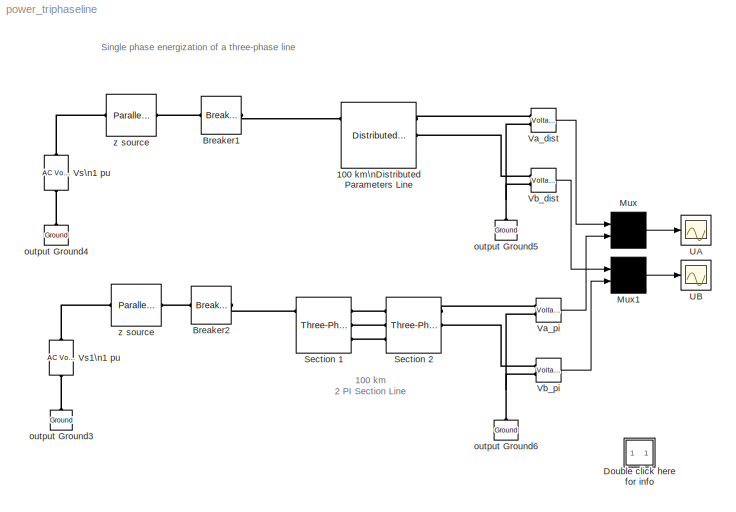
MODEL power_triphaseline
KIND model
BLOCK [Reference] 100 km\nDistributed Parameters Line  REF=powerlib/Elements/Distributed Parameters Line
  AttributesFormatString = \\n
  Capacitance = [12.74e-9 7.751e-9]
  Frequency = 60
  Inductance = [0.9337e-3  4.1264e-3]
  Length = 100
  Measurements = None
  Phases = 3
  Ports = [0, 0, 0, 0, 0, 3, 3]
  Resistance = [0.01273 0.3864]
  ShowPortLabels = on
  SourceBlock = powerlib/Elements/Distributed Parameters Line
  SourceType = Distributed Parameters Line
  x1 = [0 0 0 0; 0.0001244 0 0 0; 0.0002488 0 0 0; 0.0003733 0 0 0; 0.0004977 0 0 0; 0.0006221 0 0 0]
  x2 = [0 0 0 0; 0.0001244 0 0 0; 0.0002488 0 0 0; 0.0003733 0 0 0; 0.0004977 0 0 0; 0.0006221 0 0 0]
  x3 = [0 0 0 0; 0.0001244 0 0 0; 0.0002488 0 0 0; 0.0003733 0 0 0; 0.0004977 0 0 0; 0.0006221 0 0 0]
  x4 = [0 0 0 0; 0.0001244 0 0 0; 0.0002488 0 0 0; 0.0003733 0 0 0; 0.0004977 0 0 0; 0.0006221 0 0 0]
  x5 = 0
BLOCK [Reference] Breaker1  REF=powerlib/Elements/Breaker
  AttributesFormatString = \\n
  BreakerResistance = 0.01
  External = off
  InitialState = 0
  Measurements = None
  Ports = [0, 0, 0, 0, 0, 1, 1]
  ShowPortLabels = on
  SnubberCapacitance = 0
  SnubberResistance = inf
  SourceBlock = powerlib/Elements/Breaker
  SourceType = Breaker
  SwitchingTimes = [ 0.25/60  4/60 ]
BLOCK [Reference] Breaker2  REF=powerlib/Elements/Breaker
  AttributesFormatString = \\n
  BreakerResistance = 0.01
  External = off
  InitialState = 0
  Measurements = None
  Ports = [0, 0, 0, 0, 0, 1, 1]
  ShowPortLabels = on
  SnubberCapacitance = 0
  SnubberResistance = inf
  SourceBlock = powerlib/Elements/Breaker
  SourceType = Breaker
  SwitchingTimes = [ .25/60  4/60 ]
BLOCK [SubSystem] Double click here for info
  MaskDisplay = disp('?')
  MaskIconFrame = on
  MaskIconOpaque = on
  MaskIconRotate = none
  MaskIconUnits = autoscale
  MinAlgLoopOccurrences = off
  Ports = []
  RTWSystemCode = Auto
  TreatAsAtomicUnit = off
BLOCK [Mux] Mux
  Inputs = 2
  Ports = [2, 1]
BLOCK [Mux] Mux1
  Inputs = 2
  Ports = [2, 1]
BLOCK [Reference] Section 1  REF=powerlib/Elements/Three-Phase\nPI Section Line
  AttributesFormatString = \\n
  Capacitances = [12.74e-9 7.751e-9]
  Frequency = 60
  Inductances = [ 0.9337e-3  4.1264e-3]
  LConnTagsString = a|b|c
  LeftPortType = p1
  Length = 50
  PhysicalDomain = powersysdomain
  Ports = [0, 0, 0, 0, 0, 3, 3]
  RConnTagsString = A|B|C
  Resistances = [ 0.01273 0.3864]
  RightPortType = p1
  SourceBlock = powerlib/Elements/Three-Phase\nPI Section Line
  SourceType = Three-Phase PI Section Line
  SubClassName = unknown
BLOCK [Reference] Section 2  REF=powerlib/Elements/Three-Phase\nPI Section Line
  AttributesFormatString = \\n
  Capacitances = [12.74e-9 7.751e-9]
  Frequency = 60
  Inductances = [ 0.9337e-3  4.1264e-3]
  LConnTagsString = a|b|c
  LeftPortType = p1
  Length = 50
  PhysicalDomain = powersysdomain
  Ports = [0, 0, 0, 0, 0, 3, 3]
  RConnTagsString = A|B|C
  Resistances = [ 0.01273 0.3864]
  RightPortType = p1
  SourceBlock = powerlib/Elements/Three-Phase\nPI Section Line
  SourceType = Three-Phase PI Section Line
  SubClassName = unknown
BLOCK [Scope] UA
  DataFormat = Array
  LimitDataPoints = off
  NumInputPorts = 1
  Ports = [1]
  TickLabels = on
  TimeRange = 0.1
  YMax = 4
  YMin = -4
BLOCK [Scope] UB
  DataFormat = Array
  MaxDataPoints = 500000
  NumInputPorts = 1
  Ports = [1]
  TickLabels = on
  TimeRange = 0.1
  YMax = 1
  YMin = -1
BLOCK [Reference] Va_dist  REF=powerlib/Measurements/Voltage Measurement
  AttributesFormatString = \\n
  OutputType = Magnitude
  PSBequivalent = 0
  PhasorSimulation = off
  Ports = [0, 1, 0, 0, 0, 2]
  ShowPortLabels = on
  SourceBlock = powerlib/Measurements/Voltage Measurement
  SourceType = Voltage Measurement
  Tag = PoWeRsYsTeMmEaSuReMeNt
BLOCK [Reference] Va_pi  REF=powerlib/Measurements/Voltage Measurement
  AttributesFormatString = \\n
  OutputType = Magnitude
  PSBequivalent = 0
  PhasorSimulation = off
  Ports = [0, 1, 0, 0, 0, 2]
  ShowPortLabels = on
  SourceBlock = powerlib/Measurements/Voltage Measurement
  SourceType = Voltage Measurement
  Tag = PoWeRsYsTeMmEaSuReMeNt
BLOCK [Reference] Vb_dist  REF=powerlib/Measurements/Voltage Measurement
  AttributesFormatString = \\n
  OutputType = Magnitude
  PSBequivalent = 0
  PhasorSimulation = off
  Ports = [0, 1, 0, 0, 0, 2]
  ShowPortLabels = on
  SourceBlock = powerlib/Measurements/Voltage Measurement
  SourceType = Voltage Measurement
  Tag = PoWeRsYsTeMmEaSuReMeNt
BLOCK [Reference] Vb_pi  REF=powerlib/Measurements/Voltage Measurement
  AttributesFormatString = \\n
  OutputType = Magnitude
  PSBequivalent = 0
  PhasorSimulation = off
  Ports = [0, 1, 0, 0, 0, 2]
  ShowPortLabels = on
  SourceBlock = powerlib/Measurements/Voltage Measurement
  SourceType = Voltage Measurement
  Tag = PoWeRsYsTeMmEaSuReMeNt
BLOCK [Reference] Vs1\n1 pu  REF=powerlib/Electrical\nSources/AC Voltage Source
  Amplitude = 1
  AttributesFormatString = \\n
  Description = source block
  Frequency = 60
  Measurements = None
  Phase = 0
  Ports = [0, 0, 0, 0, 0, 1, 1]
  SampleTime = 0
  ShowPortLabels = on
  SourceBlock = powerlib/Electrical\nSources/AC Voltage Source
  SourceType = AC Voltage Source
BLOCK [Reference] Vs\n1 pu  REF=powerlib/Electrical\nSources/AC Voltage Source
  Amplitude = 1
  AttributesFormatString = \\n
  Description = source block
  Frequency = 60
  Measurements = None
  Phase = 0
  Ports = [0, 0, 0, 0, 0, 1, 1]
  SampleTime = 0
  ShowPortLabels = on
  SourceBlock = powerlib/Electrical\nSources/AC Voltage Source
  SourceType = AC Voltage Source
BLOCK [Reference] output Ground3  REF=powerlib/Elements/Ground
  AttributesFormatString = \\n
  LConnTagsString = a
  LeftPortType = p1
  PhysicalDomain = powersysdomain
  Ports = [0, 0, 0, 0, 0, 1]
  RightPortType = p1
  SourceBlock = powerlib/Elements/Ground
  SourceType = Ground
  SubClassName = unknown
BLOCK [Reference] output Ground4  REF=powerlib/Elements/Ground
  AttributesFormatString = \\n
  LConnTagsString = a
  LeftPortType = p1
  PhysicalDomain = powersysdomain
  Ports = [0, 0, 0, 0, 0, 1]
  RightPortType = p1
  SourceBlock = powerlib/Elements/Ground
  SourceType = Ground
  SubClassName = unknown
BLOCK [Reference] output Ground5  REF=powerlib/Elements/Ground
  AttributesFormatString = \\n
  LConnTagsString = a
  LeftPortType = p1
  PhysicalDomain = powersysdomain
  Ports = [0, 0, 0, 0, 0, 1]
  RightPortType = p1
  SourceBlock = powerlib/Elements/Ground
  SourceType = Ground
  SubClassName = unknown
BLOCK [Reference] output Ground6  REF=powerlib/Elements/Ground
  AttributesFormatString = \\n
  LConnTagsString = a
  LeftPortType = p1
  PhysicalDomain = powersysdomain
  Ports = [0, 0, 0, 0, 0, 1]
  RightPortType = p1
  SourceBlock = powerlib/Elements/Ground
  SourceType = Ground
  SubClassName = unknown
BLOCK [Reference] z source  REF=powerlib/Elements/Parallel RLC Branch
  AttributesFormatString = \\n
  Capacitance = 0
  Inductance = 47.8e-3
  LConnTagsString = a
  LeftPortType = p1
  Measurements = None
  PhysicalDomain = powersysdomain
  Ports = [0, 0, 0, 0, 0, 1, 1]
  RConnTagsString = __new0
  Resistance = 180
  RightPortType = p1
  SourceBlock = powerlib/Elements/Parallel RLC Branch
  SourceType = Parallel RLC Branch
  SubClassName = unknown
BLOCK [Reference] z source   REF=powerlib/Elements/Parallel RLC Branch
  AttributesFormatString = \\n
  Capacitance = 0
  Inductance = 47.8e-3
  LConnTagsString = a
  LeftPortType = p1
  Measurements = None
  PhysicalDomain = powersysdomain
  Ports = [0, 0, 0, 0, 0, 1, 1]
  RConnTagsString = __new0
  Resistance = 180
  RightPortType = p1
  SourceBlock = powerlib/Elements/Parallel RLC Branch
  SourceType = Parallel RLC Branch
  SubClassName = unknown
ANNOTATION (root): 100 km \n2 PI Section Line
ANNOTATION (root): Single phase energization of a three-phase line
ANNOTATION Double click here for info: A 100 km, 3-phase line is energized on a 735 kV, 30,000 MVA equivalent network.\nThe line is first energized on phase A at t = 1/4 cycle (maximum of source voltage) and then deenergized at t = 4 cycles.\nPhase B and phase C are left open.\nSwitchings are performed simultaneously on two different line models:\n\n- Distributed Parameters Line\n- Three-phase PI section Line consisting of two 50 km se...<+106ch>
ANNOTATION Double click here for info: Circuit Description
ANNOTATION Double click here for info: Demonstration
ANNOTATION Double click here for info: G. Sybille (Hydro-Quebec)
ANNOTATION Double click here for info: Open the two scopes and start the simulation.\nCompare the voltages obtained on phase A and phase B (induced voltage) with the two models.\nZoom on voltages rigth after energizing and notice the sharp edges obtained with the distributed parameter line (yellow trace).\nThese voltage steps which are due to travelling wave reflections at both ends of the line are filtered by the PI model.\nNotice als...<+80ch>
ANNOTATION Double click here for info: This demonstration compares transients obtained with\na distributed parameter line model and a PI section line model
LINE Mux1:1 -> UB:1
LINE Mux:1 -> UA:1
LINE Va_dist:1 -> Mux:1
LINE Va_pi:1 -> Mux:2
LINE Vb_dist:1 -> Mux1:1
LINE Vb_pi:1 -> Mux1:2
PLINE 100 km\nDistributed Parameters Line:LConn1 -- Breaker1:RConn1
PLINE 100 km\nDistributed Parameters Line:RConn1 -- Va_dist:LConn1
PLINE 100 km\nDistributed Parameters Line:RConn2 -- Vb_dist:LConn1
PLINE Breaker1:LConn1 -- z source:RConn1
PLINE Breaker2:LConn1 -- z source :RConn1
PLINE Breaker2:RConn1 -- Section 1:LConn1
PLINE Section 1:RConn1 -- Section 2:LConn1
PLINE Section 1:RConn2 -- Section 2:LConn2
PLINE Section 1:RConn3 -- Section 2:LConn3
PLINE Section 2:RConn1 -- Va_pi:LConn1
PLINE Section 2:RConn2 -- Vb_pi:LConn1
PNET net1: Va_dist:LConn2 -- Vb_dist:LConn2 -- output Ground5:LConn1
PNET net2: Va_pi:LConn2 -- Vb_pi:LConn2 -- output Ground6:LConn1
PLINE Vs1\n1 pu:LConn1 -- output Ground3:LConn1
PLINE Vs1\n1 pu:RConn1 -- z source :LConn1
PLINE Vs\n1 pu:LConn1 -- output Ground4:LConn1
PLINE Vs\n1 pu:RConn1 -- z source:LConn1
note: PNET lines group multi-terminal physical nets as a canonical sorted terminal list (undirected conserving connections); 2-terminal nets keep the pairwise PLINE form
